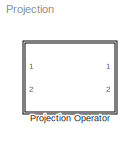
MODEL Projection
KIND library
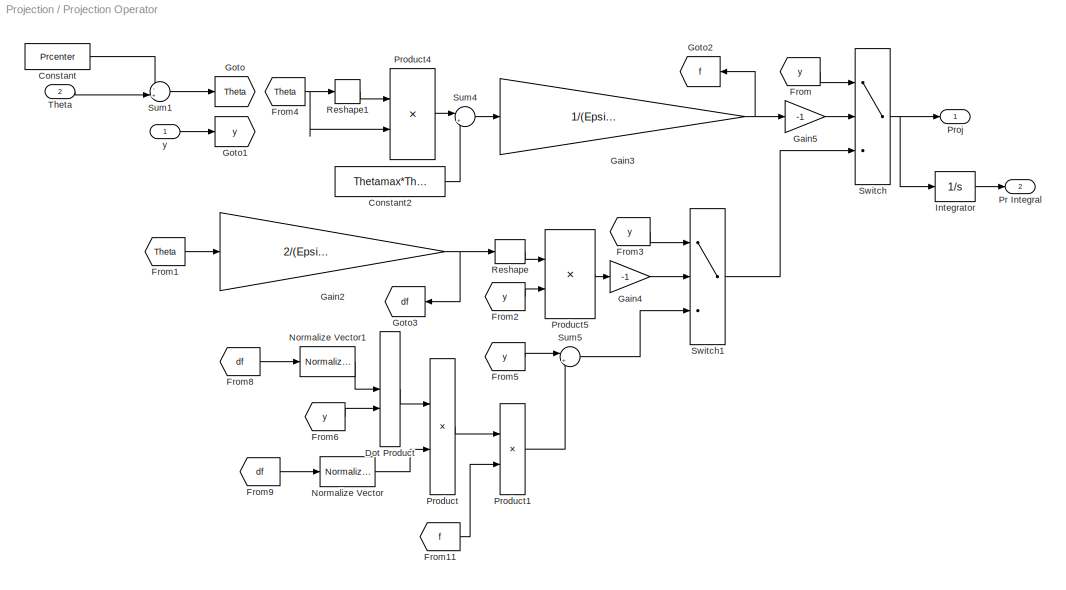
BLOCK [SubSystem] Projection Operator
  FunctionWithSeparateData = off
  MaskCallbackString = |||
  MaskDescription = Computes projection of the signal and safely integrate it.\nWorks both for scalar and vector signals.\nIt considers the parameter set as a ball at the specified location with\npreset radius.
  MaskEnableString = on,on,on,on
  MaskHideContents = off
  MaskIconFrame = on
  MaskIconOpaque = on
  MaskIconRotate = none
  MaskIconUnits = autoscale
  MaskInitialization = Thetamax = Prmax / sqrt(EpsilonTheta+1);\nIntmax = Prmax+Prcenter;\nIntmin = -Prmax+Prcenter;
  MaskPortRotate = default
  MaskPromptString = Epsilon|Bound (radius of the ball)|Center of the Ball|Initialization of integral
  MaskStyleString = edit,edit,edit,edit
  MaskToolTipString = on,on,on,on
  MaskTunableValueString = off,off,off,off
  MaskValueString = .1|1|0|0
  MaskVariables = EpsilonTheta=@1;Prmax=@2;Prcenter=@3;Pr0=@4;
  MaskVisibilityString = on,on,on,on
  MinAlgLoopOccurrences = off
  Opaque = off
  Ports = [2, 2]
  PropExecContextOutsideSubsystem = off
  RTWSystemCode = Auto
  RequestExecContextInheritance = off
  SID = 1
BLOCK [Constant] Projection Operator/Constant
  OutDataType = fixdt(1, 16)
  OutScaling = 2^0
  SID = 40
  Value = Prcenter
BLOCK [Constant] Projection Operator/Constant2
  OutDataType = sfix(16)
  OutScaling = 2^0
  SID = 4
  Value = Thetamax*Thetamax
BLOCK [DotProduct] Projection Operator/Dot Product
  OutDataType = fixdt(1, 16)
  OutDataTypeStr = Inherit: Inherit via internal rule
  OutScaling = 2^-10
  OutputDataTypeScalingMode = Inherit via internal rule
  SID = 5
BLOCK [From] Projection Operator/From
  CloseFcn = tagdialog Close
  GotoTag = y
  SID = 6
BLOCK [From] Projection Operator/From1
  CloseFcn = tagdialog Close
  GotoTag = Theta
  SID = 7
BLOCK [From] Projection Operator/From11
  CloseFcn = tagdialog Close
  GotoTag = f
  SID = 8
BLOCK [From] Projection Operator/From2
  CloseFcn = tagdialog Close
  GotoTag = y
  SID = 9
BLOCK [From] Projection Operator/From3
  CloseFcn = tagdialog Close
  GotoTag = y
  SID = 10
BLOCK [From] Projection Operator/From4
  CloseFcn = tagdialog Close
  GotoTag = Theta
  SID = 11
BLOCK [From] Projection Operator/From5
  CloseFcn = tagdialog Close
  GotoTag = y
  SID = 12
BLOCK [From] Projection Operator/From6
  CloseFcn = tagdialog Close
  GotoTag = y
  SID = 13
BLOCK [From] Projection Operator/From8
  CloseFcn = tagdialog Close
  GotoTag = df
  SID = 14
BLOCK [From] Projection Operator/From9
  CloseFcn = tagdialog Close
  GotoTag = df
  SID = 15
BLOCK [Gain] Projection Operator/Gain2
  Gain = 2/(EpsilonTheta*Thetamax*Thetamax)
  OutDataType = sfix(16)
  OutDataTypeMode = Inherit via internal rule
  OutDataTypeStr = Inherit: Inherit via internal rule
  OutScaling = 2^0
  ParamDataTypeStr = Inherit: Inherit via internal rule
  ParameterDataType = sfix(16)
  ParameterDataTypeMode = Inherit via internal rule
  ParameterScaling = 2^0
  SID = 16
  SaturateOnIntegerOverflow = off
BLOCK [Gain] Projection Operator/Gain3
  Gain = 1/(EpsilonTheta*Thetamax*Thetamax)
  OutDataType = sfix(16)
  OutDataTypeMode = Inherit via internal rule
  OutDataTypeStr = Inherit: Inherit via internal rule
  OutScaling = 2^0
  ParamDataTypeStr = Inherit: Inherit via internal rule
  ParameterDataType = sfix(16)
  ParameterDataTypeMode = Inherit via internal rule
  ParameterScaling = 2^0
  SID = 17
  SaturateOnIntegerOverflow = off
BLOCK [Gain] Projection Operator/Gain4
  Gain = -1
  OutDataType = sfix(16)
  OutDataTypeMode = Inherit via internal rule
  OutDataTypeStr = Inherit: Inherit via internal rule
  OutScaling = 2^0
  ParamDataTypeStr = Inherit: Inherit via internal rule
  ParameterDataType = sfix(16)
  ParameterDataTypeMode = Inherit via internal rule
  ParameterScaling = 2^0
  SID = 18
  SaturateOnIntegerOverflow = off
BLOCK [Gain] Projection Operator/Gain5
  Gain = -1
  OutDataType = sfix(16)
  OutDataTypeMode = Inherit via internal rule
  OutDataTypeStr = Inherit: Inherit via internal rule
  OutScaling = 2^0
  ParamDataTypeStr = Inherit: Inherit via internal rule
  ParameterDataType = sfix(16)
  ParameterDataTypeMode = Inherit via internal rule
  ParameterScaling = 2^0
  SID = 19
  SaturateOnIntegerOverflow = off
BLOCK [Goto] Projection Operator/Goto
  GotoTag = Theta
  SID = 20
  TagVisibility = local
BLOCK [Goto] Projection Operator/Goto1
  GotoTag = y
  SID = 21
  TagVisibility = local
BLOCK [Goto] Projection Operator/Goto2
  GotoTag = f
  SID = 22
  TagVisibility = local
BLOCK [Goto] Projection Operator/Goto3
  GotoTag = df
  SID = 23
  TagVisibility = local
BLOCK [Integrator] Projection Operator/Integrator
  InitialCondition = Pr0
  LimitOutput = on
  LowerSaturationLimit = Intmin
  Ports = [1, 1]
  SID = 24
  UpperSaturationLimit = Intmax
BLOCK [Reference] Projection Operator/Normalize Vector  REF=vrlib/Utilities/Normalize Vector
  FunctionWithSeparateData = off
  Ports = [1, 1]
  RTWMemSecDataConstants = Inherit from model
  RTWMemSecDataInternal = Inherit from model
  RTWMemSecDataParameters = Inherit from model
  RTWMemSecFuncExecute = Inherit from model
  RTWMemSecFuncInitTerm = Inherit from model
  SID = 25
  ShowPortLabels = FromPortIcon
  SourceBlock = vrlib/Utilities/Normalize Vector
  SourceType = Normalize Vector
  SystemSampleTime = -1
  maxzero = 0
BLOCK [Reference] Projection Operator/Normalize Vector1  REF=vrlib/Utilities/Normalize Vector
  FunctionWithSeparateData = off
  Ports = [1, 1]
  RTWMemSecDataConstants = Inherit from model
  RTWMemSecDataInternal = Inherit from model
  RTWMemSecDataParameters = Inherit from model
  RTWMemSecFuncExecute = Inherit from model
  RTWMemSecFuncInitTerm = Inherit from model
  SID = 26
  ShowPortLabels = FromPortIcon
  SourceBlock = vrlib/Utilities/Normalize Vector
  SourceType = Normalize Vector
  SystemSampleTime = -1
  maxzero = 0
BLOCK [Outport] Projection Operator/Pr Integral
  IconDisplay = Port number
  OutDataType = sfix(16)
  OutScaling = 2^0
  Port = 2
  SID = 38
BLOCK [Product] Projection Operator/Product
  InputSameDT = off
  OutDataType = fixdt(1, 16)
  OutDataTypeMode = Inherit via internal rule
  OutDataTypeStr = Inherit: Inherit via internal rule
  OutScaling = 2^0
  Ports = [2, 1]
  SID = 27
  SaturateOnIntegerOverflow = off
BLOCK [Product] Projection Operator/Product1
  InputSameDT = off
  OutDataType = fixdt(1, 16)
  OutDataTypeMode = Inherit via internal rule
  OutDataTypeStr = Inherit: Inherit via internal rule
  OutScaling = 2^0
  Ports = [2, 1]
  SID = 28
  SaturateOnIntegerOverflow = off
BLOCK [Product] Projection Operator/Product4
  InputSameDT = off
  Multiplication = Matrix(*)
  OutDataType = sfix(16)
  OutDataTypeMode = Inherit via internal rule
  OutDataTypeStr = Inherit: Inherit via internal rule
  OutScaling = 2^0
  Ports = [2, 1]
  SID = 29
  SaturateOnIntegerOverflow = off
BLOCK [Product] Projection Operator/Product5
  InputSameDT = off
  Multiplication = Matrix(*)
  OutDataType = sfix(16)
  OutDataTypeMode = Inherit via internal rule
  OutDataTypeStr = Inherit: Inherit via internal rule
  OutScaling = 2^0
  Ports = [2, 1]
  SID = 30
  SaturateOnIntegerOverflow = off
BLOCK [Outport] Projection Operator/Proj
  IconDisplay = Port number
  OutDataType = sfix(16)
  OutScaling = 2^0
  SID = 37
BLOCK [Reshape] Projection Operator/Reshape
  OutputDimensionality = Row vector (2-D)
  Ports = [1, 1]
  SID = 31
BLOCK [Reshape] Projection Operator/Reshape1
  OutputDimensionality = Row vector (2-D)
  Ports = [1, 1]
  SID = 32
BLOCK [Sum] Projection Operator/Sum1
  IconShape = round
  InputSameDT = off
  Inputs = -+|
  OutDataType = sfix(16)
  OutDataTypeMode = Inherit via internal rule
  OutDataTypeStr = Inherit: Inherit via internal rule
  OutScaling = 2^0
  Ports = [2, 1]
  SID = 39
  SaturateOnIntegerOverflow = off
BLOCK [Sum] Projection Operator/Sum4
  IconShape = round
  InputSameDT = off
  Inputs = |+-
  OutDataType = sfix(16)
  OutDataTypeMode = Inherit via internal rule
  OutDataTypeStr = Inherit: Inherit via internal rule
  OutScaling = 2^0
  Ports = [2, 1]
  SID = 33
  SaturateOnIntegerOverflow = off
BLOCK [Sum] Projection Operator/Sum5
  IconShape = round
  InputSameDT = off
  Inputs = |+-
  OutDataType = sfix(16)
  OutDataTypeMode = Inherit via internal rule
  OutDataTypeStr = Inherit: Inherit via internal rule
  OutScaling = 2^0
  Ports = [2, 1]
  SID = 34
  SaturateOnIntegerOverflow = off
BLOCK [Switch] Projection Operator/Switch
  Criteria = u2 > Threshold
  InputSameDT = off
  OutDataType = sfix(16)
  OutScaling = 2^0
  SID = 35
  SaturateOnIntegerOverflow = off
BLOCK [Switch] Projection Operator/Switch1
  InputSameDT = off
  OutDataType = sfix(16)
  OutScaling = 2^0
  SID = 36
  SaturateOnIntegerOverflow = off
BLOCK [Inport] Projection Operator/Theta
  IconDisplay = Port number
  OutDataType = sfix(16)
  OutScaling = 2^0
  Port = 2
  SID = 3
BLOCK [Inport] Projection Operator/y
  IconDisplay = Port number
  OutDataType = sfix(16)
  OutScaling = 2^0
  SID = 2
LINE Projection Operator/Constant2:1 -> Projection Operator/Sum4:2
LINE Projection Operator/Constant:1 -> Projection Operator/Sum1:1
LINE Projection Operator/Dot Product:1 -> Projection Operator/Product:1
LINE Projection Operator/From11:1 -> Projection Operator/Product1:2
LINE Projection Operator/From1:1 -> Projection Operator/Gain2:1
LINE Projection Operator/From2:1 -> Projection Operator/Product5:2
LINE Projection Operator/From3:1 -> Projection Operator/Switch1:1
NET Projection Operator/From4:1 -> Projection Operator/Product4:2, Projection Operator/Reshape1:1
LINE Projection Operator/From5:1 -> Projection Operator/Sum5:1
LINE Projection Operator/From6:1 -> Projection Operator/Dot Product:2
LINE Projection Operator/From8:1 -> Projection Operator/Normalize Vector1:1
LINE Projection Operator/From9:1 -> Projection Operator/Normalize Vector:1
LINE Projection Operator/From:1 -> Projection Operator/Switch:1
NET Projection Operator/Gain2:1 -> Projection Operator/Goto3:1, Projection Operator/Reshape:1
NET Projection Operator/Gain3:1 -> Projection Operator/Gain5:1, Projection Operator/Goto2:1
LINE Projection Operator/Gain4:1 -> Projection Operator/Switch1:2
LINE Projection Operator/Gain5:1 -> Projection Operator/Switch:2
LINE Projection Operator/Integrator:1 -> Projection Operator/Pr Integral:1
LINE Projection Operator/Normalize Vector1:1 -> Projection Operator/Dot Product:1
LINE Projection Operator/Normalize Vector:1 -> Projection Operator/Product:2
LINE Projection Operator/Product1:1 -> Projection Operator/Sum5:2
LINE Projection Operator/Product4:1 -> Projection Operator/Sum4:1
LINE Projection Operator/Product5:1 -> Projection Operator/Gain4:1
LINE Projection Operator/Product:1 -> Projection Operator/Product1:1
LINE Projection Operator/Reshape1:1 -> Projection Operator/Product4:1
LINE Projection Operator/Reshape:1 -> Projection Operator/Product5:1
LINE Projection Operator/Sum1:1 -> Projection Operator/Goto:1
LINE Projection Operator/Sum4:1 -> Projection Operator/Gain3:1
LINE Projection Operator/Sum5:1 -> Projection Operator/Switch1:3
LINE Projection Operator/Switch1:1 -> Projection Operator/Switch:3
NET Projection Operator/Switch:1 -> Projection Operator/Integrator:1, Projection Operator/Proj:1
LINE Projection Operator/Theta:1 -> Projection Operator/Sum1:2
LINE Projection Operator/y:1 -> Projection Operator/Goto1:1
note: NET lines group one-source signal fan-out (src -> all destinations, sorted); 1:1 wires keep LINE
